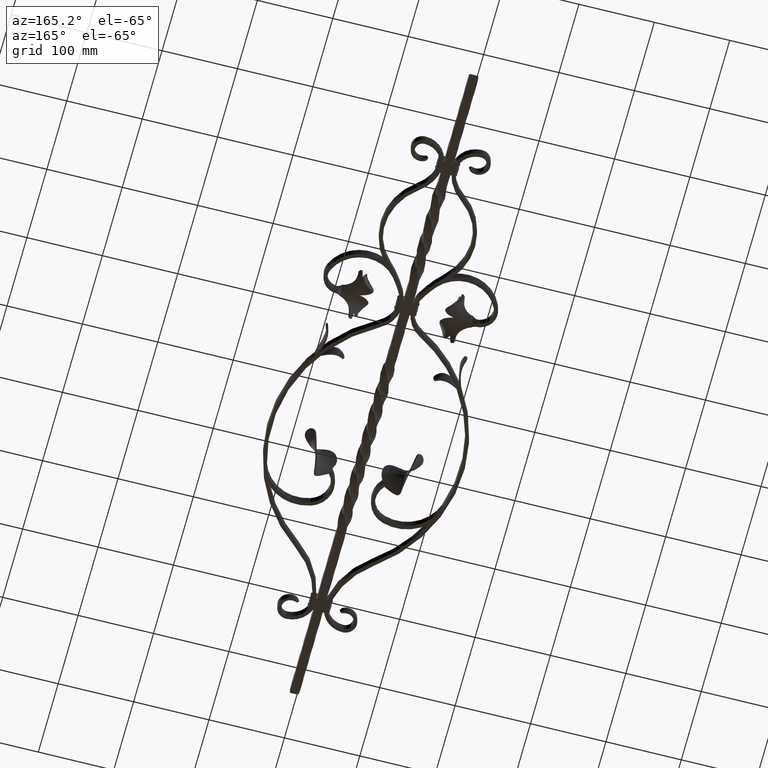
[diagram: clean part render]
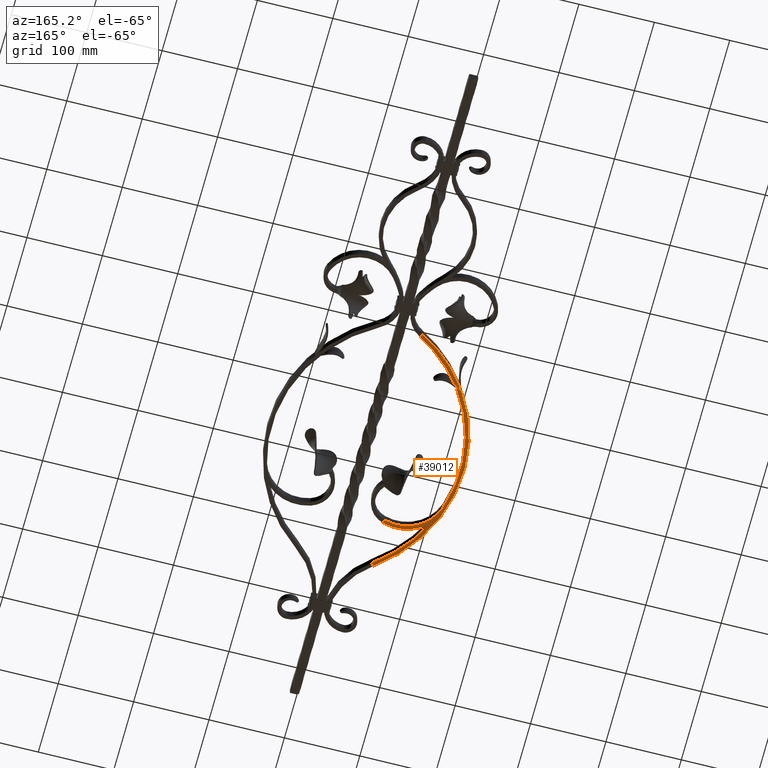
[diagram: same view with one face highlighted and labeled with its STEP entity id]
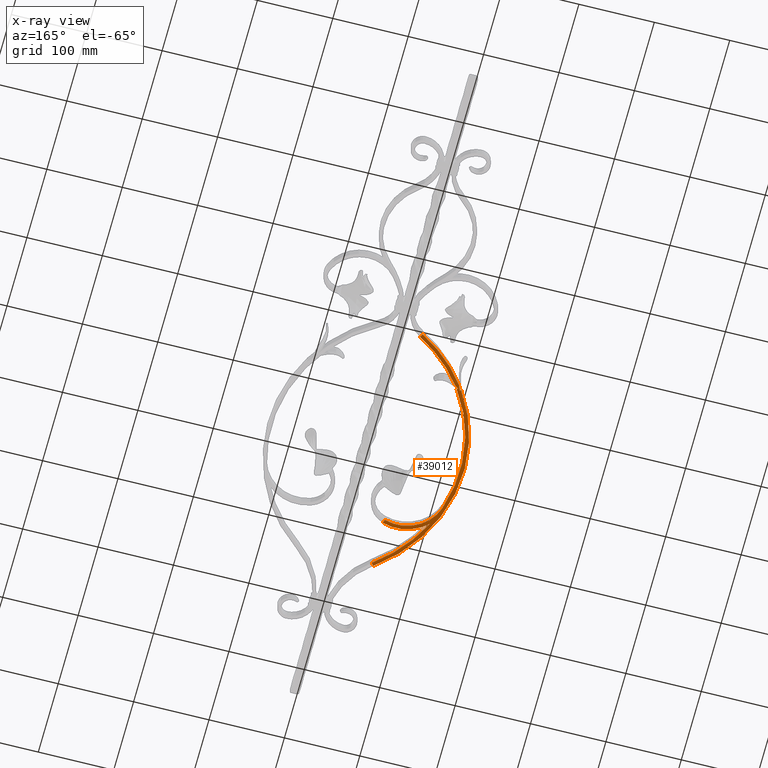
[diagram: x-ray of the same camera — body ghosted, the highlighted face saturated]
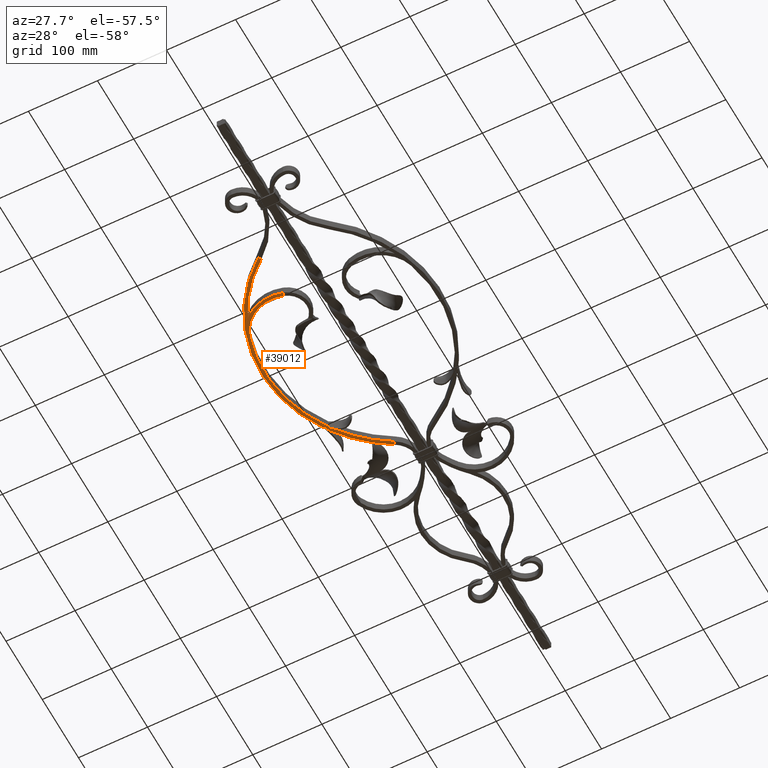
[diagram: same view with one face highlighted and labeled with its STEP entity id]
A machine part, auxiliary view. The second image highlights one B-rep face of the part: STEP entity #39012.
The next image is the same camera in x-ray: the body ghosted, the highlighted face saturated — about 0% of this face is hidden behind the body in this view.
A second angle (auxiliary view) of the same face is appended — the face is thin or edge-on in the first view.
In plain terms, the highlighted planar face has unit normal (-0, 0, -1).
Its self-contained STEP definition (entity closure, byte-faithful):
#12 = FACE_OUTER_BOUND ( 'NONE', #39190, .T. ) ;
#363 = CARTESIAN_POINT ( 'NONE',  ( -106.5441543421317192, -173.2465165121928692, -6.000000000000000000 ) ) ;
#564 = DIRECTION ( 'NONE',  ( -0.4972331834549500451, 0.8676169438590143335, 0.000000000000000000 ) ) ;
#884 = VERTEX_POINT ( 'NONE', #42641 ) ;
#1152 = VECTOR ( 'NONE', #29697, 1000.000000000000114 ) ;
#1262 = CARTESIAN_POINT ( 'NONE',  ( -65.76763092655829723, -131.9999998333333338, -6.000000000000000000 ) ) ;
#1427 = LINE ( 'NONE', #10737, #2768 ) ;
#1968 = DIRECTION ( 'NONE',  ( 0.6093817276569273300, 0.7928769828906994110, -0.000000000000000000 ) ) ;
#2025 = CARTESIAN_POINT ( 'NONE',  ( 70.62453861500259222, -90.29945903481983294, -6.000000000000000000 ) ) ;
#2202 = EDGE_CURVE ( 'NONE', #24527, #38167, #6802, .T. ) ;
#2214 = CIRCLE ( 'NONE', #26113, 195.6245386149036847 ) ;
#2272 = DIRECTION ( 'NONE',  ( -0.4972331834549501561, 0.8676169438590144445, 0.000000000000000000 ) ) ;
#2274 = EDGE_CURVE ( 'NONE', #50234, #24527, #37367, .T. ) ;
#2768 = VECTOR ( 'NONE', #36517, 1000.000000000000227 ) ;
#3128 = LINE ( 'NONE', #50666, #1152 ) ;
#4777 = DIRECTION ( 'NONE',  ( 0.000000000000000000, 0.000000000000000000, 1.000000000000000000 ) ) ;
#4995 = EDGE_CURVE ( 'NONE', #51683, #14245, #43253, .T. ) ;
#5501 = ORIENTED_EDGE ( 'NONE', *, *, #29899, .F. ) ;
#6162 = CARTESIAN_POINT ( 'NONE',  ( 70.62453861500259222, -90.29945903481983294, -6.000000000000000000 ) ) ;
#6198 = VERTEX_POINT ( 'NONE', #25439 ) ;
#6379 = VECTOR ( 'NONE', #1968, 1000.000000000000000 ) ;
#6802 = LINE ( 'NONE', #9202, #20785 ) ;
#6851 = LINE ( 'NONE', #53435, #40706 ) ;
#6914 = CARTESIAN_POINT ( 'NONE',  ( -65.76763092655829723, -131.9999998333333338, -6.000000000000000000 ) ) ;
#7031 = CIRCLE ( 'NONE', #35667, 200.6245386149037415 ) ;
#9202 = CARTESIAN_POINT ( 'NONE',  ( -47.74672717694629398, -187.1293661279631237, -6.000000000000000000 ) ) ;
#9647 = VERTEX_POINT ( 'NONE', #14366 ) ;
#9882 = CARTESIAN_POINT ( 'NONE',  ( -92.59144619845592672, 21.12764971388410018, -6.000000000000000000 ) ) ;
#10737 = CARTESIAN_POINT ( 'NONE',  ( -96.95898724173160588, 19.99998500655711453, -6.000000000000000000 ) ) ;
#10793 = CARTESIAN_POINT ( 'NONE',  ( -90.93850070041260381, 22.49124091986126928, -6.000000000000000000 ) ) ;
#12627 = ORIENTED_EDGE ( 'NONE', *, *, #21573, .T. ) ;
#14186 = CARTESIAN_POINT ( 'NONE',  ( -26.64647348239179792, 79.42770530207266688, -6.000000000000000000 ) ) ;
#14245 = VERTEX_POINT ( 'NONE', #43707 ) ;
#14366 = CARTESIAN_POINT ( 'NONE',  ( -90.93966766982822492, 19.99998500660131384, -6.000000000000000000 ) ) ;
#14764 = CARTESIAN_POINT ( 'NONE',  ( 70.62453861500259222, -90.29945903481983294, -6.000000000000000000 ) ) ;
#14821 = AXIS2_PLACEMENT_3D ( 'NONE', #6914, #32335, #49422 ) ;
#15274 = EDGE_CURVE ( 'NONE', #39759, #884, #51626, .T. ) ;
#15961 = DIRECTION ( 'NONE',  ( 0.8258892643461988037, -0.5638323536634756161, 0.000000000000000000 ) ) ;
#18193 = DIRECTION ( 'NONE',  ( -0.9563022665386825549, -0.2923798471389205678, 0.000000000000000000 ) ) ;
#18477 = ORIENTED_EDGE ( 'NONE', *, *, #52543, .F. ) ;
#18919 = VERTEX_POINT ( 'NONE', #34347 ) ;
#18986 = CARTESIAN_POINT ( 'NONE',  ( -92.59144619845592672, 21.12764971388410018, -6.000000000000000000 ) ) ;
#19339 = CARTESIAN_POINT ( 'NONE',  ( -89.23234174260397822, 23.76810189965637576, -6.000000000000003553 ) ) ;
#20115 = AXIS2_PLACEMENT_3D ( 'NONE', #14186, #43685, #31235 ) ;
#20352 = CIRCLE ( 'NONE', #23906, 53.00000000000211742 ) ;
#20445 = ORIENTED_EDGE ( 'NONE', *, *, #2274, .F. ) ;
#20785 = VECTOR ( 'NONE', #38499, 1000.000000000000000 ) ;
#20972 = VERTEX_POINT ( 'NONE', #25637 ) ;
#21272 = ORIENTED_EDGE ( 'NONE', *, *, #41689, .F. ) ;
#21573 = EDGE_CURVE ( 'NONE', #31762, #9647, #6851, .T. ) ;
#21886 = CARTESIAN_POINT ( 'NONE',  ( 70.62453861500259222, -90.29945903481983294, -6.000000000000000000 ) ) ;
#21942 = CARTESIAN_POINT ( 'NONE',  ( 70.62453861500259222, -90.29945903481983294, -6.000000000000000000 ) ) ;
#23075 = PLANE ( 'NONE',  #20115 ) ;
#23244 = EDGE_CURVE ( 'NONE', #6198, #26284, #1427, .T. ) ;
#23906 = AXIS2_PLACEMENT_3D ( 'NONE', #1262, #30780, #18193 ) ;
#23942 = DIRECTION ( 'NONE',  ( -0.4972331834549501561, 0.8676169438590144445, 0.000000000000000000 ) ) ;
#24527 = VERTEX_POINT ( 'NONE', #49444 ) ;
#24798 = ORIENTED_EDGE ( 'NONE', *, *, #55103, .T. ) ;
#24810 = ORIENTED_EDGE ( 'NONE', *, *, #15274, .F. ) ;
#24925 = B_SPLINE_CURVE_WITH_KNOTS ( 'NONE', 3,
 ( #18986, #10793, #19339, #40462 ),
 .UNSPECIFIED., .F., .F.,
 ( 4, 4 ),
 ( 0.000000000000000000, 0.006366014927167088465 ),
 .UNSPECIFIED. ) ;
#25439 = CARTESIAN_POINT ( 'NONE',  ( -96.95898724179707528, 19.99998500660023382, -6.000000000000000000 ) ) ;
#25582 = CARTESIAN_POINT ( 'NONE',  ( -29.13263939958855531, 83.76579002123176565, -6.000000000000000000 ) ) ;
#25637 = CARTESIAN_POINT ( 'NONE',  ( -26.64647348231383006, 79.42770530193668321, -6.000000000000000000 ) ) ;
#25654 = CARTESIAN_POINT ( 'NONE',  ( -95.28836881176600571, 18.90042415719076985, -6.000000000000001776 ) ) ;
#25807 = CARTESIAN_POINT ( 'NONE',  ( -49.30025336225403265, -182.3768345508388791, -6.000000000000000000 ) ) ;
#26113 = AXIS2_PLACEMENT_3D ( 'NONE', #6162, #52587, #2272 ) ;
#26284 = VERTEX_POINT ( 'NONE', #47967 ) ;
#26421 = EDGE_CURVE ( 'NONE', #9647, #48824, #51066, .T. ) ;
#29447 = CARTESIAN_POINT ( 'NONE',  ( -51.63238933652131379, -249.3700379056433860, -6.000000000000000000 ) ) ;
#29697 = DIRECTION ( 'NONE',  ( 0.4972331834549501561, -0.8676169438590142224, -0.000000000000000000 ) ) ;
#29899 = EDGE_CURVE ( 'NONE', #6198, #39759, #7031, .T. ) ;
#30780 = DIRECTION ( 'NONE',  ( 0.000000000000000000, 0.000000000000000000, 1.000000000000000000 ) ) ;
#31235 = DIRECTION ( 'NONE',  ( -1.000000000000000000, 0.000000000000000000, 0.000000000000000000 ) ) ;
#31762 = VERTEX_POINT ( 'NONE', #9882 ) ;
#32335 = DIRECTION ( 'NONE',  ( 0.000000000000000000, 0.000000000000000000, 1.000000000000000000 ) ) ;
#32617 = B_SPLINE_CURVE_WITH_KNOTS ( 'NONE', 3,
 ( #55016, #42548, #50547, #25654 ),
 .UNSPECIFIED., .F., .F.,
 ( 4, 4 ),
 ( 0.03864169767789315396, 0.04641221200314411821 ),
 .UNSPECIFIED. ) ;
#32853 = AXIS2_PLACEMENT_3D ( 'NONE', #2025, #36531, #23942 ) ;
#33455 = CIRCLE ( 'NONE', #32853, 195.6245386149036847 ) ;
#34031 = ORIENTED_EDGE ( 'NONE', *, *, #23244, .T. ) ;
#34347 = CARTESIAN_POINT ( 'NONE',  ( -87.45822995308772363, 24.93420961346000553, -6.000000000000000000 ) ) ;
#34534 = DIRECTION ( 'NONE',  ( 0.000000000000000000, 0.000000000000000000, 1.000000000000000000 ) ) ;
#34603 = ORIENTED_EDGE ( 'NONE', *, *, #54325, .T. ) ;
#35667 = AXIS2_PLACEMENT_3D ( 'NONE', #21886, #4777, #51567 ) ;
#36022 = ORIENTED_EDGE ( 'NONE', *, *, #26421, .T. ) ;
#36517 = DIRECTION ( 'NONE',  ( 0.8353092149828044155, -0.5497804246831737851, 0.000000000000000000 ) ) ;
#36531 = DIRECTION ( 'NONE',  ( 0.000000000000000000, 0.000000000000000000, 1.000000000000000000 ) ) ;
#37367 = CIRCLE ( 'NONE', #14821, 58.00000000000212452 ) ;
#37484 = ORIENTED_EDGE ( 'NONE', *, *, #44377, .T. ) ;
#38167 = VERTEX_POINT ( 'NONE', #25807 ) ;
#38499 = DIRECTION ( 'NONE',  ( -0.3107052370615501213, 0.9505063154248507562, 0.000000000000000000 ) ) ;
#39012 = ADVANCED_FACE ( 'NONE', ( #12 ), #23075, .T. ) ;
#39190 = EDGE_LOOP ( 'NONE', ( #12627, #36022, #37484, #45252, #20445, #34603, #24810, #5501, #34031, #21272, #45110, #40480, #24798, #18477 ) ) ;
#39759 = VERTEX_POINT ( 'NONE', #29447 ) ;
#40462 = CARTESIAN_POINT ( 'NONE',  ( -87.45822995308772363, 24.93420961346000553, -6.000000000000000000 ) ) ;
#40480 = ORIENTED_EDGE ( 'NONE', *, *, #42333, .T. ) ;
#40706 = VECTOR ( 'NONE', #15961, 1000.000000000000114 ) ;
#41689 = EDGE_CURVE ( 'NONE', #14245, #26284, #32617, .T. ) ;
#42333 = EDGE_CURVE ( 'NONE', #51683, #20972, #3128, .T. ) ;
#42548 = CARTESIAN_POINT ( 'NONE',  ( -93.48589415745198039, 23.79057864008580481, -5.999999999999998224 ) ) ;
#42641 = CARTESIAN_POINT ( 'NONE',  ( -48.58548069823672222, -245.4056529911898394, -6.000000000000000000 ) ) ;
#43253 = CIRCLE ( 'NONE', #47979, 200.6245386149037415 ) ;
#43685 = DIRECTION ( 'NONE',  ( -0.000000000000000000, 0.000000000000000000, -1.000000000000000000 ) ) ;
#43707 = CARTESIAN_POINT ( 'NONE',  ( -92.66564212601616646, 26.26177966831178168, -6.000000000000000000 ) ) ;
#44282 = CARTESIAN_POINT ( 'NONE',  ( -48.58548069823670801, -245.4056529911898679, -6.000000000000000000 ) ) ;
#44377 = EDGE_CURVE ( 'NONE', #48824, #38167, #20352, .T. ) ;
#44999 = DIRECTION ( 'NONE',  ( -0.4972331834549501561, 0.8676169438590144445, 0.000000000000000000 ) ) ;
#45110 = ORIENTED_EDGE ( 'NONE', *, *, #4995, .F. ) ;
#45252 = ORIENTED_EDGE ( 'NONE', *, *, #2202, .F. ) ;
#47967 = CARTESIAN_POINT ( 'NONE',  ( -95.28836881176600571, 18.90042415719076985, -6.000000000000001776 ) ) ;
#47979 = AXIS2_PLACEMENT_3D ( 'NONE', #21942, #34534, #564 ) ;
#48209 = CARTESIAN_POINT ( 'NONE',  ( -116.4516510530138902, -147.4961317316671625, -6.000000000000000000 ) ) ;
#48524 = DIRECTION ( 'NONE',  ( 0.000000000000000000, 0.000000000000000000, 1.000000000000000000 ) ) ;
#48824 = VERTEX_POINT ( 'NONE', #48209 ) ;
#49422 = DIRECTION ( 'NONE',  ( -0.9563022665387032051, -0.2923798471388528442, 0.000000000000000000 ) ) ;
#49444 = CARTESIAN_POINT ( 'NONE',  ( -47.74672717694629398, -187.1293661279631522, -6.000000000000000000 ) ) ;
#50234 = VERTEX_POINT ( 'NONE', #363 ) ;
#50382 = AXIS2_PLACEMENT_3D ( 'NONE', #14764, #48524, #44999 ) ;
#50547 = CARTESIAN_POINT ( 'NONE',  ( -94.37007231889286629, 21.33999854773407989, -6.000000000000001776 ) ) ;
#50666 = CARTESIAN_POINT ( 'NONE',  ( -26.64647348231380519, 79.42770530193665479, -6.000000000000000000 ) ) ;
#51066 = CIRCLE ( 'NONE', #50382, 195.6245386149036847 ) ;
#51567 = DIRECTION ( 'NONE',  ( -0.4972331834549500451, 0.8676169438590143335, 0.000000000000000000 ) ) ;
#51626 = LINE ( 'NONE', #44282, #6379 ) ;
#51683 = VERTEX_POINT ( 'NONE', #25582 ) ;
#52543 = EDGE_CURVE ( 'NONE', #31762, #18919, #24925, .T. ) ;
#52587 = DIRECTION ( 'NONE',  ( 0.000000000000000000, 0.000000000000000000, 1.000000000000000000 ) ) ;
#53435 = CARTESIAN_POINT ( 'NONE',  ( -92.59144619845592672, 21.12764971388409663, -6.000000000000000000 ) ) ;
#54325 = EDGE_CURVE ( 'NONE', #50234, #884, #33455, .T. ) ;
#55016 = CARTESIAN_POINT ( 'NONE',  ( -92.66564212601616646, 26.26177966831178168, -6.000000000000000000 ) ) ;
#55103 = EDGE_CURVE ( 'NONE', #20972, #18919, #2214, .T. ) ;